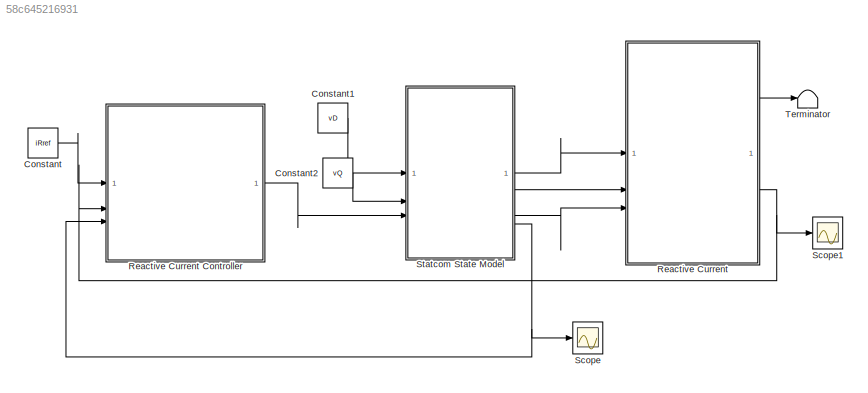
MODEL slx_58c645216931
KIND model
CONFIG AbsTol = auto
CONFIG EnableMultiTasking = off
CONFIG FixedStep = auto
CONFIG MaxStep = auto
CONFIG MinStep = auto
CONFIG RelTol = 1e-3
CONFIG SampleTimeConstraint = Unconstrained
CONFIG SolverName = VariableStepAuto
CONFIG StartTime = 0.0
CONFIG StopTime = 10
BLOCK [Constant] Constant
  Value = iRref
BLOCK [Constant] Constant1
  Value = vD
BLOCK [Constant] Constant2
  Value = vQ
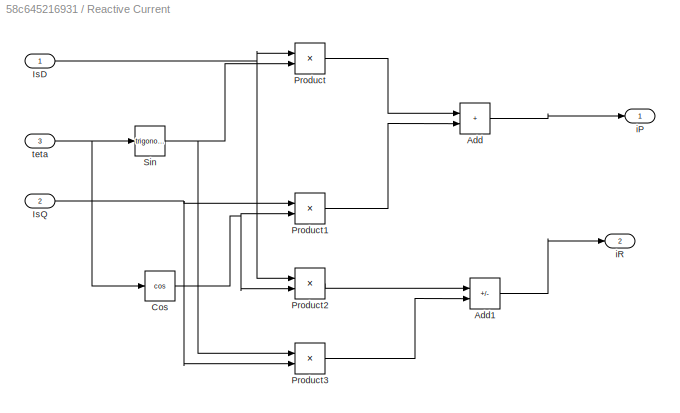
BLOCK [SubSystem] Reactive Current
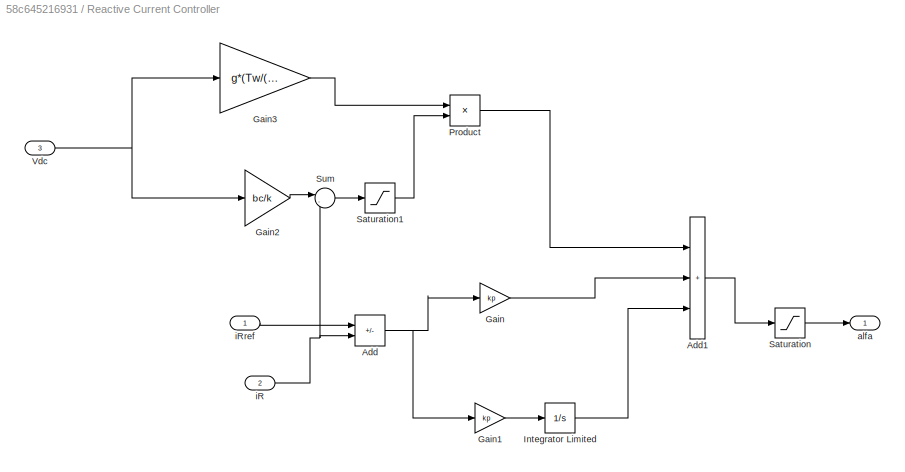
BLOCK [SubSystem] Reactive Current Controller
BLOCK [Sum] Reactive Current Controller/Add
  IconShape = rectangular
  Inputs = +-
BLOCK [Sum] Reactive Current Controller/Add1
  IconShape = rectangular
  Inputs = +++
BLOCK [Gain] Reactive Current Controller/Gain
  Gain = kp
BLOCK [Gain] Reactive Current Controller/Gain1
  Gain = kp
BLOCK [Gain] Reactive Current Controller/Gain2
  Gain = bc/k
BLOCK [Gain] Reactive Current Controller/Gain3
  Gain = g*(Tw/(1+Tw))
BLOCK [Integrator] Reactive Current Controller/Integrator Limited
  LimitOutput = on
  LowerSaturationLimit = -pi/4
  UpperSaturationLimit = pi/4
BLOCK [Product] Reactive Current Controller/Product
BLOCK [Saturate] Reactive Current Controller/Saturation
  LowerLimit = -pi/4
  UpperLimit = pi/4
BLOCK [Saturate] Reactive Current Controller/Saturation1
BLOCK [Sum] Reactive Current Controller/Sum
  Inputs = |-+
BLOCK [Inport] Reactive Current Controller/Vdc
  Port = 3
BLOCK [Outport] Reactive Current Controller/alfa
BLOCK [Inport] Reactive Current Controller/iR
  Port = 2
BLOCK [Inport] Reactive Current Controller/iRref
BLOCK [Sum] Reactive Current/Add
  IconShape = rectangular
BLOCK [Sum] Reactive Current/Add1
  IconShape = rectangular
  Inputs = +-
BLOCK [Trigonometry] Reactive Current/Cos
  Operator = cos
BLOCK [Inport] Reactive Current/IsD
BLOCK [Inport] Reactive Current/IsQ
  Port = 2
BLOCK [Product] Reactive Current/Product
BLOCK [Product] Reactive Current/Product1
BLOCK [Product] Reactive Current/Product2
BLOCK [Product] Reactive Current/Product3
BLOCK [Trigonometry] Reactive Current/Sin
BLOCK [Outport] Reactive Current/iP
BLOCK [Outport] Reactive Current/iR
  Port = 2
BLOCK [Inport] Reactive Current/teta
  Port = 3
BLOCK [Scope] Scope
  Floating = off
  NumInputPorts = 1
  ScopeSpecificationString = Simulink.scopes.TimeScopeBlockCfg('CurrentConfiguration', extmgr.ConfigurationSet(extmgr.Configuration('Core','General UI',true),extmgr.Configuration('Core','Source UI',true),extmgr.Configuration('Sources','WiredSimulink',true),extmgr.Configuration('Visuals','Time Domain',true,'SerializedDisplays',{struct('MinYLimReal','-7.33037','MaxYLimReal','1.94272','YLabelReal','','MinYLimMag','0.00000','MaxY...<+1344ch>
BLOCK [Scope] Scope1
  Floating = off
  NumInputPorts = 1
  ScopeSpecificationString = Simulink.scopes.TimeScopeBlockCfg('CurrentConfiguration', extmgr.ConfigurationSet(extmgr.Configuration('Core','General UI',true),extmgr.Configuration('Core','Source UI',true),extmgr.Configuration('Sources','WiredSimulink',true,'DataLoggingVariableName','ScopeData1'),extmgr.Configuration('Visuals','Time Domain',true,'SerializedDisplays',{struct('MinYLimReal','-56.10818','MaxYLimReal','7.34535','YLa...<+1408ch>
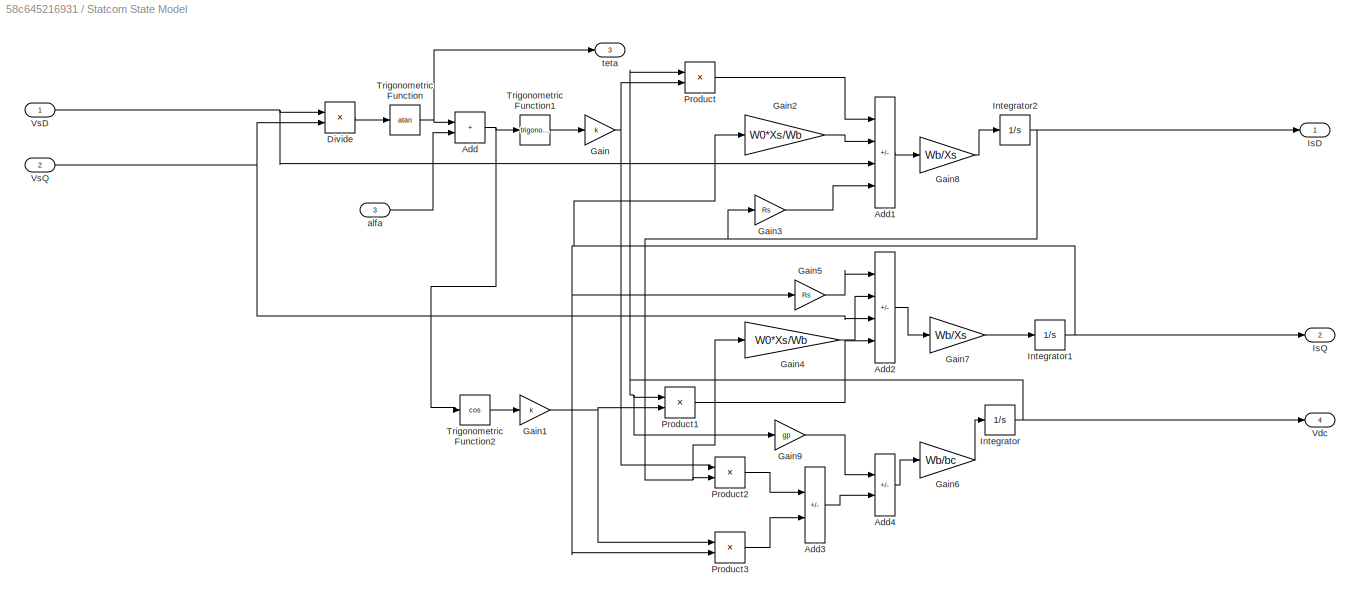
BLOCK [SubSystem] Statcom State Model
BLOCK [Sum] Statcom State Model/Add
  IconShape = rectangular
BLOCK [Sum] Statcom State Model/Add1
  IconShape = rectangular
  Inputs = --+-
BLOCK [Sum] Statcom State Model/Add2
  IconShape = rectangular
  Inputs = -++-
BLOCK [Sum] Statcom State Model/Add3
  IconShape = rectangular
  Inputs = --
BLOCK [Sum] Statcom State Model/Add4
  IconShape = rectangular
  Inputs = --
BLOCK [Product] Statcom State Model/Divide
  Inputs = */
BLOCK [Gain] Statcom State Model/Gain
  Gain = k
BLOCK [Gain] Statcom State Model/Gain1
  Gain = k
BLOCK [Gain] Statcom State Model/Gain2
  Gain = W0*Xs/Wb
BLOCK [Gain] Statcom State Model/Gain3
  Gain = Rs
BLOCK [Gain] Statcom State Model/Gain4
  Gain = W0*Xs/Wb
BLOCK [Gain] Statcom State Model/Gain5
  Gain = Rs
BLOCK [Gain] Statcom State Model/Gain6
  Gain = Wb/bc
BLOCK [Gain] Statcom State Model/Gain7
  Gain = Wb/Xs
BLOCK [Gain] Statcom State Model/Gain8
  Gain = Wb/Xs
BLOCK [Gain] Statcom State Model/Gain9
  Gain = gp
BLOCK [Integrator] Statcom State Model/Integrator
BLOCK [Integrator] Statcom State Model/Integrator1
  InitialCondition = 1
BLOCK [Integrator] Statcom State Model/Integrator2
  InitialCondition = 1
BLOCK [Outport] Statcom State Model/IsD
BLOCK [Outport] Statcom State Model/IsQ
  Port = 2
BLOCK [Product] Statcom State Model/Product
BLOCK [Product] Statcom State Model/Product1
BLOCK [Product] Statcom State Model/Product2
BLOCK [Product] Statcom State Model/Product3
BLOCK [Trigonometry] Statcom State Model/Trigonometric Function
  Operator = atan
BLOCK [Trigonometry] Statcom State Model/Trigonometric Function1
BLOCK [Trigonometry] Statcom State Model/Trigonometric Function2
  Operator = cos
BLOCK [Outport] Statcom State Model/Vdc
  Port = 4
BLOCK [Inport] Statcom State Model/VsD
BLOCK [Inport] Statcom State Model/VsQ
  Port = 2
BLOCK [Inport] Statcom State Model/alfa
  Port = 3
BLOCK [Outport] Statcom State Model/teta
  Port = 3
BLOCK [Terminator] Terminator
LINE Constant1:1 -> Statcom State Model:1
LINE Constant2:1 -> Statcom State Model:2
LINE Constant:1 -> Reactive Current Controller:1
LINE Reactive Current Controller/Add1:1 -> Reactive Current Controller/Saturation:1
NET Reactive Current Controller/Add:1 -> Reactive Current Controller/Gain1:1, Reactive Current Controller/Gain:1
LINE Reactive Current Controller/Gain1:1 -> Reactive Current Controller/Integrator Limited:1
LINE Reactive Current Controller/Gain2:1 -> Reactive Current Controller/Sum:1
LINE Reactive Current Controller/Gain3:1 -> Reactive Current Controller/Product:1
LINE Reactive Current Controller/Gain:1 -> Reactive Current Controller/Add1:2
LINE Reactive Current Controller/Integrator Limited:1 -> Reactive Current Controller/Add1:3
LINE Reactive Current Controller/Product:1 -> Reactive Current Controller/Add1:1
LINE Reactive Current Controller/Saturation1:1 -> Reactive Current Controller/Product:2
LINE Reactive Current Controller/Saturation:1 -> Reactive Current Controller/alfa:1
LINE Reactive Current Controller/Sum:1 -> Reactive Current Controller/Saturation1:1
NET Reactive Current Controller/Vdc:1 -> Reactive Current Controller/Gain2:1, Reactive Current Controller/Gain3:1
NET Reactive Current Controller/iR:1 -> Reactive Current Controller/Add:2, Reactive Current Controller/Sum:2
LINE Reactive Current Controller/iRref:1 -> Reactive Current Controller/Add:1
LINE Reactive Current Controller:1 -> Statcom State Model:3
LINE Reactive Current/Add1:1 -> Reactive Current/iR:1
LINE Reactive Current/Add:1 -> Reactive Current/iP:1
NET Reactive Current/Cos:1 -> Reactive Current/Product1:2, Reactive Current/Product2:2
NET Reactive Current/IsD:1 -> Reactive Current/Product2:1, Reactive Current/Product:1
NET Reactive Current/IsQ:1 -> Reactive Current/Product1:1, Reactive Current/Product3:2
LINE Reactive Current/Product1:1 -> Reactive Current/Add:2
LINE Reactive Current/Product2:1 -> Reactive Current/Add1:1
LINE Reactive Current/Product3:1 -> Reactive Current/Add1:2
LINE Reactive Current/Product:1 -> Reactive Current/Add:1
NET Reactive Current/Sin:1 -> Reactive Current/Product3:1, Reactive Current/Product:2
NET Reactive Current/teta:1 -> Reactive Current/Cos:1, Reactive Current/Sin:1
LINE Reactive Current:1 -> Terminator:1
NET Reactive Current:2 -> Reactive Current Controller:2, Scope1:1
LINE Statcom State Model/Add1:1 -> Statcom State Model/Gain8:1
LINE Statcom State Model/Add2:1 -> Statcom State Model/Gain7:1
LINE Statcom State Model/Add3:1 -> Statcom State Model/Add4:2
LINE Statcom State Model/Add4:1 -> Statcom State Model/Gain6:1
NET Statcom State Model/Add:1 -> Statcom State Model/Trigonometric Function1:1, Statcom State Model/Trigonometric Function2:1
LINE Statcom State Model/Divide:1 -> Statcom State Model/Trigonometric Function:1
NET Statcom State Model/Gain1:1 -> Statcom State Model/Product1:2, Statcom State Model/Product3:1
LINE Statcom State Model/Gain2:1 -> Statcom State Model/Add1:2
LINE Statcom State Model/Gain3:1 -> Statcom State Model/Add1:4
LINE Statcom State Model/Gain4:1 -> Statcom State Model/Add2:2
LINE Statcom State Model/Gain5:1 -> Statcom State Model/Add2:1
LINE Statcom State Model/Gain6:1 -> Statcom State Model/Integrator:1
LINE Statcom State Model/Gain7:1 -> Statcom State Model/Integrator1:1
LINE Statcom State Model/Gain8:1 -> Statcom State Model/Integrator2:1
LINE Statcom State Model/Gain9:1 -> Statcom State Model/Add4:1
NET Statcom State Model/Gain:1 -> Statcom State Model/Product2:1, Statcom State Model/Product:2
NET Statcom State Model/Integrator1:1 -> Statcom State Model/Gain2:1, Statcom State Model/Gain5:1, Statcom State Model/IsQ:1, Statcom State Model/Product3:2
NET Statcom State Model/Integrator2:1 -> Statcom State Model/Gain3:1, Statcom State Model/Gain4:1, Statcom State Model/IsD:1, Statcom State Model/Product2:2
NET Statcom State Model/Integrator:1 -> Statcom State Model/Gain9:1, Statcom State Model/Product1:1, Statcom State Model/Product:1, Statcom State Model/Vdc:1
LINE Statcom State Model/Product1:1 -> Statcom State Model/Add2:4
LINE Statcom State Model/Product2:1 -> Statcom State Model/Add3:1
LINE Statcom State Model/Product3:1 -> Statcom State Model/Add3:2
LINE Statcom State Model/Product:1 -> Statcom State Model/Add1:1
LINE Statcom State Model/Trigonometric Function1:1 -> Statcom State Model/Gain:1
LINE Statcom State Model/Trigonometric Function2:1 -> Statcom State Model/Gain1:1
NET Statcom State Model/Trigonometric Function:1 -> Statcom State Model/Add:1, Statcom State Model/teta:1
NET Statcom State Model/VsD:1 -> Statcom State Model/Add1:3, Statcom State Model/Divide:1
NET Statcom State Model/VsQ:1 -> Statcom State Model/Add2:3, Statcom State Model/Divide:2
LINE Statcom State Model/alfa:1 -> Statcom State Model/Add:2
LINE Statcom State Model:1 -> Reactive Current:1
LINE Statcom State Model:2 -> Reactive Current:2
LINE Statcom State Model:3 -> Reactive Current:3
NET Statcom State Model:4 -> Reactive Current Controller:3, Scope:1
note: NET lines group one-source signal fan-out (src -> all destinations, sorted); 1:1 wires keep LINE
